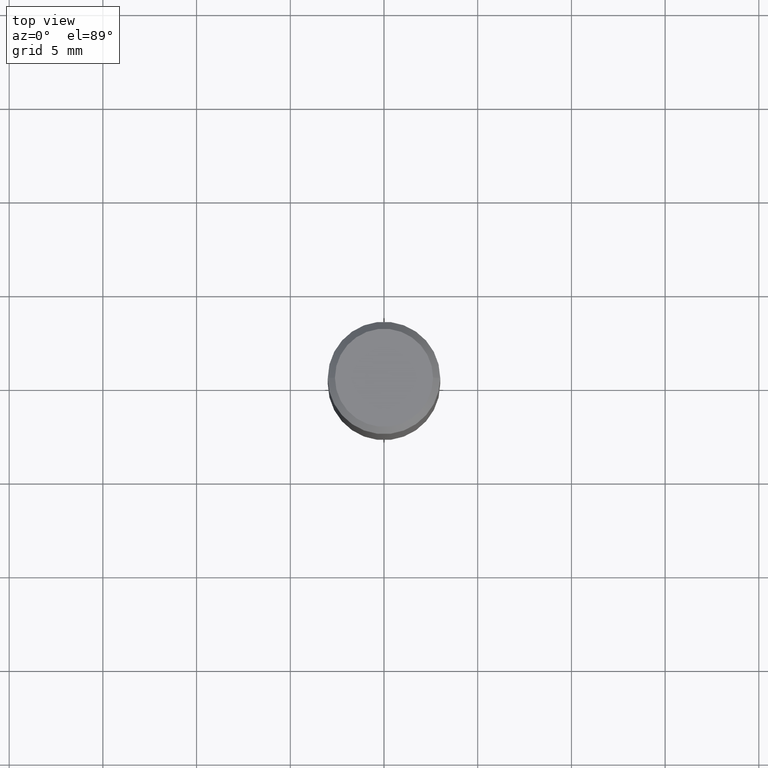
[diagram: clean part render]
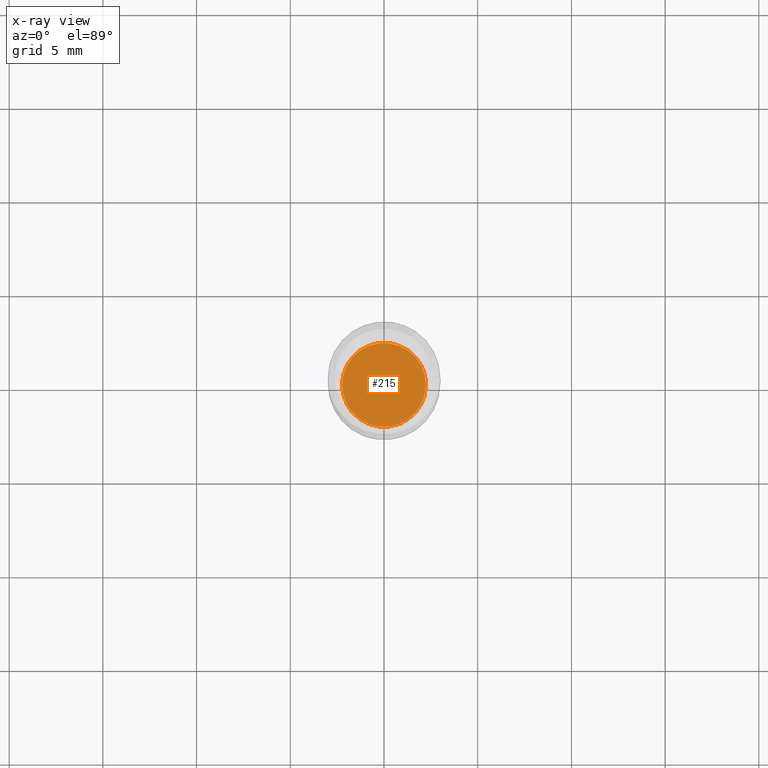
[diagram: x-ray — body ghosted, one internal face saturated and labeled with its STEP entity id]
A machine part, top view, then the same camera in x-ray: the body is ghosted and one INTERNAL B-rep face — a face not visible from any outside direction — is saturated and labeled: STEP entity #215.
In plain terms, the highlighted planar face has unit normal (-0, 0, 1).
Its self-contained STEP definition (entity closure, byte-faithful):
#3 = CARTESIAN_POINT ( 'NONE',  ( 2.127802408261687534E-29, -3.037937912927421601E-15, -0.8701000000000000956 ) ) ;
#31 = EDGE_LOOP ( 'NONE', ( #202, #88 ) ) ;
#42 = DIRECTION ( 'NONE',  ( 1.000000000000000000, -6.982962677686264344E-15, 0.000000000000000000 ) ) ;
#53 = EDGE_CURVE ( 'NONE', #404, #164, #197, .T. ) ;
#58 = CARTESIAN_POINT ( 'NONE',  ( 0.08809999999999999776, -3.653136924831581152E-15, -0.8700999999999999845 ) ) ;
#64 = DIRECTION ( 'NONE',  ( -2.445468806185136597E-29, 3.491481338843145583E-15, 1.000000000000000000 ) ) ;
#88 = ORIENTED_EDGE ( 'NONE', *, *, #238, .F. ) ;
#102 = AXIS2_PLACEMENT_3D ( 'NONE', #381, #64, #178 ) ;
#121 = CARTESIAN_POINT ( 'NONE',  ( -0.08809999999999999776, -2.409300535548661264E-15, -0.8700999999999999845 ) ) ;
#164 = VERTEX_POINT ( 'NONE', #121 ) ;
#178 = DIRECTION ( 'NONE',  ( 1.000000000000000000, -6.982962677686264344E-15, 0.000000000000000000 ) ) ;
#182 = AXIS2_PLACEMENT_3D ( 'NONE', #466, #432, #42 ) ;
#197 = CIRCLE ( 'NONE', #102, 0.08809999999999999776 ) ;
#202 = ORIENTED_EDGE ( 'NONE', *, *, #53, .F. ) ;
#215 = ADVANCED_FACE ( 'NONE', ( #391 ), #424, .F. ) ;
#238 = EDGE_CURVE ( 'NONE', #164, #404, #382, .T. ) ;
#250 = DIRECTION ( 'NONE',  ( 1.000000000000000000, -6.982962677686265922E-15, 4.876176775795935793E-29 ) ) ;
#345 = AXIS2_PLACEMENT_3D ( 'NONE', #3, #354, #250 ) ;
#354 = DIRECTION ( 'NONE',  ( -2.438088387897960049E-29, 3.491481338843145188E-15, 1.000000000000000000 ) ) ;
#381 = CARTESIAN_POINT ( 'NONE',  ( 2.127802408261687534E-29, -3.037937912927420812E-15, -0.8700999999999999845 ) ) ;
#382 = CIRCLE ( 'NONE', #182, 0.08809999999999999776 ) ;
#391 = FACE_OUTER_BOUND ( 'NONE', #31, .T. ) ;
#404 = VERTEX_POINT ( 'NONE', #58 ) ;
#424 = PLANE ( 'NONE',  #345 ) ;
#432 = DIRECTION ( 'NONE',  ( -2.445468806185136597E-29, 3.491481338843145583E-15, 1.000000000000000000 ) ) ;
#466 = CARTESIAN_POINT ( 'NONE',  ( 2.127802408261687534E-29, -3.037937912927420812E-15, -0.8700999999999999845 ) ) ;